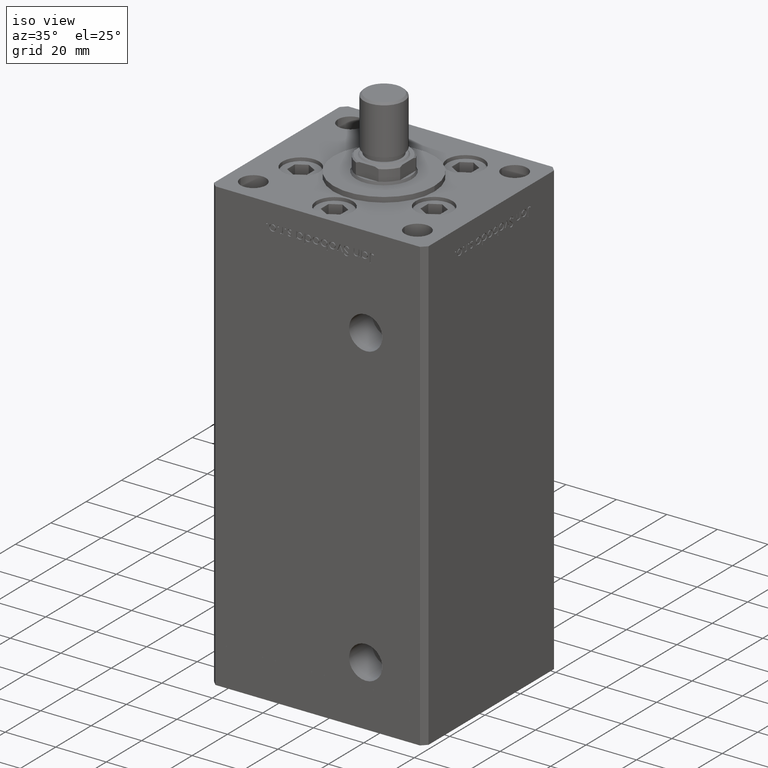
[diagram: clean part render]
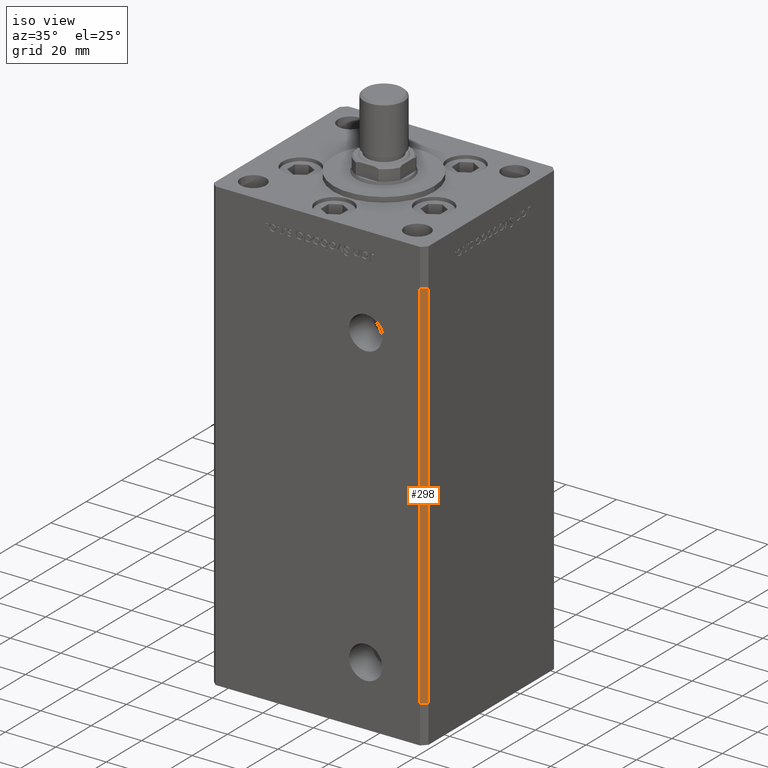
[diagram: same view with one face highlighted and labeled with its STEP entity id]
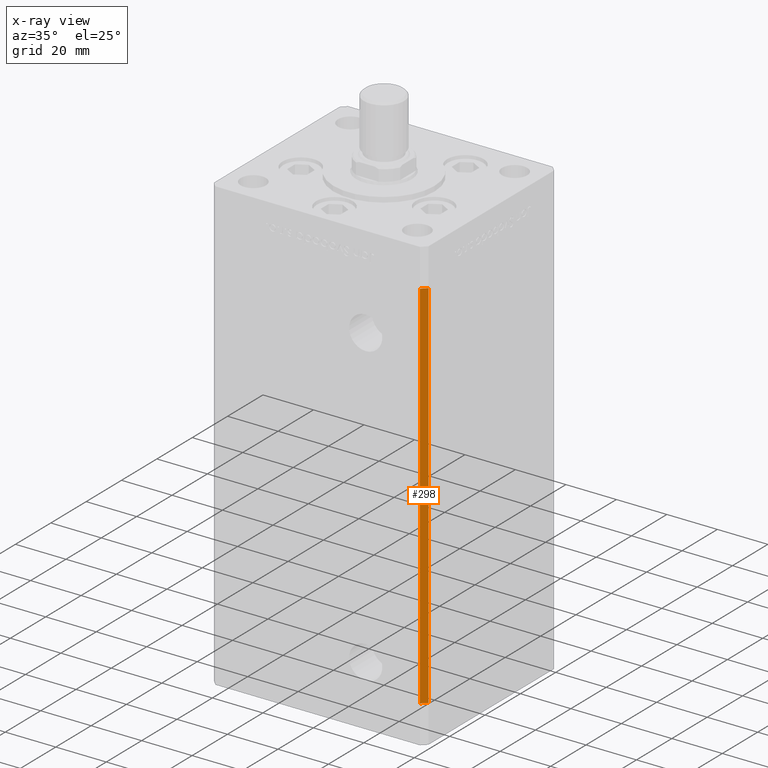
[diagram: x-ray of the same camera — body ghosted, the highlighted face saturated]
A machine part, iso view. The second image highlights one B-rep face of the part: STEP entity #298.
The next image is the same camera in x-ray: the body ghosted, the highlighted face saturated — about 0% of this face is hidden behind the body in this view.
In plain terms, the highlighted planar face has unit normal (0.7071, -0.7071, 0).
Its self-contained STEP definition (entity closure, byte-faithful):
#298 = ADVANCED_FACE ( 'NONE', ( #28070 ), #8457, .T. ) ;
#3290 = CARTESIAN_POINT ( 'NONE',  ( 42.49999999999998579, -35.50000000000000711, 148.5000000000000000 ) ) ;
#3353 = ORIENTED_EDGE ( 'NONE', *, *, #18169, .F. ) ;
#3886 = LINE ( 'NONE', #40451, #14069 ) ;
#4214 = DIRECTION ( 'NONE',  ( 0.7071067811865475727, -0.7071067811865475727, 0.000000000000000000 ) ) ;
#5636 = DIRECTION ( 'NONE',  ( -0.7071067811865474617, -0.7071067811865474617, 0.000000000000000000 ) ) ;
#8457 = PLANE ( 'NONE',  #8493 ) ;
#8493 = AXIS2_PLACEMENT_3D ( 'NONE', #40524, #4214, #45007 ) ;
#10572 = VECTOR ( 'NONE', #5636, 1000.000000000000114 ) ;
#11773 = ORIENTED_EDGE ( 'NONE', *, *, #19930, .T. ) ;
#13133 = CARTESIAN_POINT ( 'NONE',  ( 42.49999999999998579, -35.50000000000000711, 0.000000000000000000 ) ) ;
#14069 = VECTOR ( 'NONE', #20049, 1000.000000000000000 ) ;
#14245 = VECTOR ( 'NONE', #32543, 1000.000000000000000 ) ;
#16829 = VERTEX_POINT ( 'NONE', #39573 ) ;
#17024 = CARTESIAN_POINT ( 'NONE',  ( 42.49999999999998579, -35.50000000000000711, 0.000000000000000000 ) ) ;
#18169 = EDGE_CURVE ( 'NONE', #35417, #18740, #21254, .T. ) ;
#18740 = VERTEX_POINT ( 'NONE', #29857 ) ;
#19930 = EDGE_CURVE ( 'NONE', #16829, #45983, #27405, .T. ) ;
#20049 = DIRECTION ( 'NONE',  ( -0.000000000000000000, -0.000000000000000000, -1.000000000000000000 ) ) ;
#21254 = LINE ( 'NONE', #17024, #10572 ) ;
#26385 = CARTESIAN_POINT ( 'NONE',  ( 40.49999999999998579, -37.50000000000000711, 148.5000000000000000 ) ) ;
#27405 = LINE ( 'NONE', #3290, #40223 ) ;
#28070 = FACE_OUTER_BOUND ( 'NONE', #40956, .T. ) ;
#29857 = CARTESIAN_POINT ( 'NONE',  ( 40.49999999999998579, -37.50000000000000711, 0.000000000000000000 ) ) ;
#32472 = ORIENTED_EDGE ( 'NONE', *, *, #49235, .T. ) ;
#32543 = DIRECTION ( 'NONE',  ( -0.000000000000000000, -0.000000000000000000, -1.000000000000000000 ) ) ;
#35417 = VERTEX_POINT ( 'NONE', #13133 ) ;
#35622 = DIRECTION ( 'NONE',  ( -0.7071067811865474617, -0.7071067811865474617, 0.000000000000000000 ) ) ;
#38483 = EDGE_CURVE ( 'NONE', #16829, #35417, #3886, .T. ) ;
#39573 = CARTESIAN_POINT ( 'NONE',  ( 42.49999999999998579, -35.50000000000000711, 148.5000000000000000 ) ) ;
#40223 = VECTOR ( 'NONE', #35622, 1000.000000000000114 ) ;
#40451 = CARTESIAN_POINT ( 'NONE',  ( 42.49999999999998579, -35.50000000000000711, 148.5000000000000000 ) ) ;
#40497 = LINE ( 'NONE', #41016, #14245 ) ;
#40524 = CARTESIAN_POINT ( 'NONE',  ( 42.49999999999998579, -35.50000000000000711, 148.5000000000000000 ) ) ;
#40956 = EDGE_LOOP ( 'NONE', ( #3353, #41165, #11773, #32472 ) ) ;
#41016 = CARTESIAN_POINT ( 'NONE',  ( 40.49999999999998579, -37.50000000000000711, 148.5000000000000000 ) ) ;
#41165 = ORIENTED_EDGE ( 'NONE', *, *, #38483, .F. ) ;
#45007 = DIRECTION ( 'NONE',  ( 0.7071067811865474617, 0.7071067811865474617, 0.000000000000000000 ) ) ;
#45983 = VERTEX_POINT ( 'NONE', #26385 ) ;
#49235 = EDGE_CURVE ( 'NONE', #45983, #18740, #40497, .T. ) ;